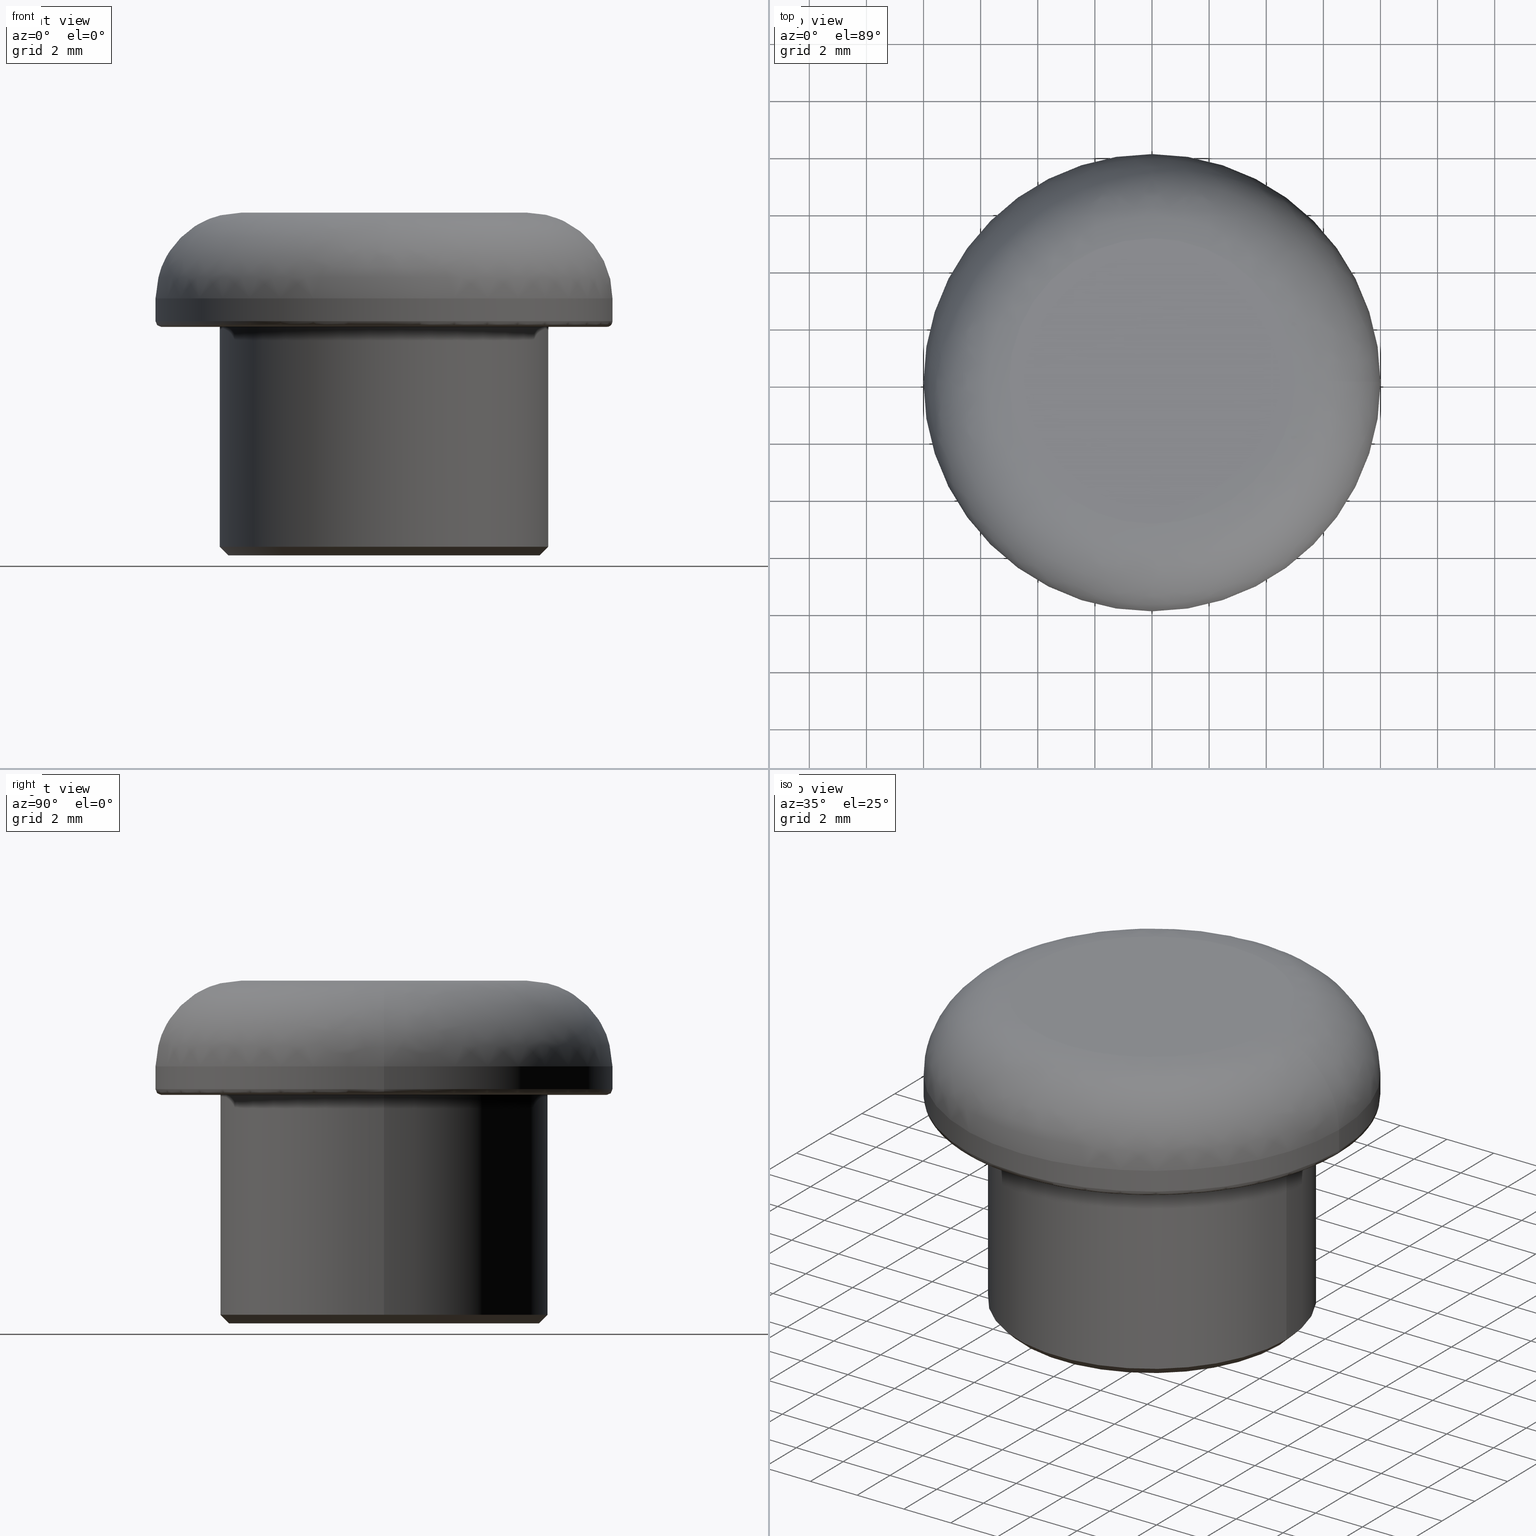
[diagram: canonical four-view strip — front | top / right | iso, engineering-drawing reading convention]
A machine part, canonical four-view strip (front | top / right | iso — engineering-drawing reading convention). The complete STEP part file that produces these views, byte-faithful:
ISO-10303-21;
HEADER;
/****************************************************************
 * Generated by software with PDE/Lib inside                    *
 * PDElib Version v4.4, created Mon 02/23/2004                  *
 * International Technegroup Inc. (www.iti-oh.com)              *
 ****************************************************************/
FILE_DESCRIPTION(('STEP AP203'),'2;1');
FILE_NAME('18.009.00.stp','2011-04-22T15:12:16',(''),(''),'2009.3.110','THINKDESIGN','');
FILE_SCHEMA(('CONFIG_CONTROL_DESIGN'));
ENDSEC;
DATA;
#2=CARTESIAN_POINT('',(-10.900000000003274,-2.900000000035107,-7.999999999968167));
#3=DIRECTION('',(0.0,0.0,-1.0));
#4=DIRECTION('',(0.0,1.0,0.0));
#5=AXIS2_PLACEMENT_3D('',#2,#3,#4);
#6=PLANE('',#5);
#7=CARTESIAN_POINT('',(-5.450000000001637,7.999999999968167,-7.999999999968168));
#8=VERTEX_POINT('',#7);
#9=CARTESIAN_POINT('',(5.450000000001637,7.999999999968167,-7.999999999968168));
#10=VERTEX_POINT('',#9);
#11=CARTESIAN_POINT('',(0.0,7.999999999968167,-7.999999999968168));
#12=DIRECTION('',(0.0,6.123234E-017,1.0));
#13=DIRECTION('',(1.0,0.0,0.0));
#14=AXIS2_PLACEMENT_3D('',#11,#12,#13);
#15=CIRCLE('',#14,5.450000000001637);
#16=EDGE_CURVE('',#8,#10,#15,.T.);
#17=ORIENTED_EDGE('',*,*,#16,.F.);
#18=CARTESIAN_POINT('',(0.0,7.999999999968167,-7.999999999968168));
#19=DIRECTION('',(0.0,6.123234E-017,1.0));
#20=DIRECTION('',(1.0,0.0,0.0));
#21=AXIS2_PLACEMENT_3D('',#18,#19,#20);
#22=CIRCLE('',#21,5.450000000001637);
#23=EDGE_CURVE('',#10,#8,#22,.T.);
#24=ORIENTED_EDGE('',*,*,#23,.F.);
#25=EDGE_LOOP('',(#17,#24));
#26=FACE_OUTER_BOUND('',#25,.T.);
#27=ADVANCED_FACE('',(#26),#6,.T.);
#28=CARTESIAN_POINT('',(5.450000000001637,7.999999999968167,-7.999999999968168));
#29=CARTESIAN_POINT('',(5.450000000001637,13.449999999969805,-7.999999999968168));
#30=CARTESIAN_POINT('',(0.0,13.449999999969805,-7.999999999968168));
#31=CARTESIAN_POINT('',(-5.450000000001637,13.449999999969805,-7.999999999968168));
#32=CARTESIAN_POINT('',(-5.450000000001637,7.999999999968167,-7.999999999968168));
#33=CARTESIAN_POINT('',(-5.450000000001637,2.549999999966530,-7.999999999968168));
#34=CARTESIAN_POINT('',(0.0,2.549999999966530,-7.999999999968168));
#35=CARTESIAN_POINT('',(5.450000000001637,2.549999999966530,-7.999999999968168));
#36=CARTESIAN_POINT('',(5.450000000001637,7.999999999968167,-7.999999999968168));
#37=CARTESIAN_POINT('',(5.750000000000000,7.999999999968167,-7.699999999969350));
#38=CARTESIAN_POINT('',(5.750000000000000,13.749999999968168,-7.699999999969350));
#39=CARTESIAN_POINT('',(1.836970E-017,13.749999999968168,-7.699999999969350));
#40=CARTESIAN_POINT('',(-5.750000000000000,13.749999999968168,-7.699999999969350));
#41=CARTESIAN_POINT('',(-5.750000000000000,7.999999999968167,-7.699999999969350));
#42=CARTESIAN_POINT('',(-5.750000000000000,2.249999999968167,-7.699999999969350));
#43=CARTESIAN_POINT('',(-1.836970E-017,2.249999999968167,-7.699999999969350));
#44=CARTESIAN_POINT('',(5.750000000000000,2.249999999968167,-7.699999999969350));
#45=CARTESIAN_POINT('',(5.750000000000000,7.999999999968167,-7.699999999969350));
#53=(BOUNDED_SURFACE()B_SPLINE_SURFACE(2,1,((#28,#37),(#29,#38),(#30,#39),(#31,#40),(#32,#41),(#33,#42),(#34,#43),(#35,#44),(#36,#45)),.UNSPECIFIED.,.T.,.F.,.U.)B_SPLINE_SURFACE_WITH_KNOTS((3,2,2,2,3),(2,2),(0.0,0.250000000000000,0.500000000000000,0.750000000000000,1.0),(-0.424264068709935,0.0),.UNSPECIFIED.)GEOMETRIC_REPRESENTATION_ITEM()RATIONAL_B_SPLINE_SURFACE(((1.0,1.0),(0.707106781186548,0.707106781186548),(1.0,1.0),(0.707106781186548,0.707106781186548),(1.0,1.0),(0.707106781186548,0.707106781186548),(1.0,1.0),(0.707106781186548,0.707106781186548),(1.0,1.0)))REPRESENTATION_ITEM('')SURFACE());
#54=ORIENTED_EDGE('',*,*,#23,.T.);
#55=ORIENTED_EDGE('',*,*,#16,.T.);
#56=CARTESIAN_POINT('',(5.750000000000000,7.999999999968167,-7.699999999969350));
#57=VERTEX_POINT('',#56);
#58=CARTESIAN_POINT('',(5.450000000001637,7.999999999968167,-7.999999999968168));
#59=DIRECTION('',(0.707106781186012,0.0,0.707106781187083));
#60=VECTOR('',#59,0.424264068709935);
#61=LINE('',#58,#60);
#62=EDGE_CURVE('',#10,#57,#61,.T.);
#63=ORIENTED_EDGE('',*,*,#62,.T.);
#64=CARTESIAN_POINT('',(-5.750000000000000,7.999999999968167,-7.699999999969350));
#65=VERTEX_POINT('',#64);
#66=CARTESIAN_POINT('',(0.0,7.999999999968167,-7.699999999969350));
#67=DIRECTION('',(0.0,6.123234E-017,1.0));
#68=DIRECTION('',(1.0,0.0,0.0));
#69=AXIS2_PLACEMENT_3D('',#66,#67,#68);
#70=CIRCLE('',#69,5.750000000000000);
#71=EDGE_CURVE('',#65,#57,#70,.T.);
#72=ORIENTED_EDGE('',*,*,#71,.F.);
#73=CARTESIAN_POINT('',(0.0,7.999999999968167,-7.699999999969350));
#74=DIRECTION('',(0.0,6.123234E-017,1.0));
#75=DIRECTION('',(1.0,0.0,0.0));
#76=AXIS2_PLACEMENT_3D('',#73,#74,#75);
#77=CIRCLE('',#76,5.750000000000000);
#78=EDGE_CURVE('',#57,#65,#77,.T.);
#79=ORIENTED_EDGE('',*,*,#78,.F.);
#80=ORIENTED_EDGE('',*,*,#62,.F.);
#81=EDGE_LOOP('',(#54,#55,#63,#72,#79,#80));
#82=FACE_OUTER_BOUND('',#81,.T.);
#83=ADVANCED_FACE('',(#82),#53,.T.);
#84=CARTESIAN_POINT('',(0.0,7.999999999968167,-7.699999999969350));
#85=DIRECTION('',(0.0,6.123234E-017,1.0));
#86=DIRECTION('',(1.0,0.0,0.0));
#87=AXIS2_PLACEMENT_3D('',#84,#85,#86);
#88=CYLINDRICAL_SURFACE('',#87,5.750000000000000);
#89=ORIENTED_EDGE('',*,*,#78,.T.);
#90=ORIENTED_EDGE('',*,*,#71,.T.);
#91=CARTESIAN_POINT('',(5.750000000000000,7.999999999968168,0.0));
#92=VERTEX_POINT('',#91);
#93=CARTESIAN_POINT('',(5.750000000000000,7.999999999968167,-7.699999999969350));
#94=DIRECTION('',(0.0,0.0,1.0));
#95=VECTOR('',#94,7.699999999969350);
#96=LINE('',#93,#95);
#97=EDGE_CURVE('',#57,#92,#96,.T.);
#98=ORIENTED_EDGE('',*,*,#97,.T.);
#99=CARTESIAN_POINT('',(-5.750000000000000,7.999999999968168,0.0));
#100=VERTEX_POINT('',#99);
#101=CARTESIAN_POINT('',(0.0,7.999999999968168,0.0));
#102=DIRECTION('',(0.0,6.123234E-017,1.0));
#103=DIRECTION('',(1.0,0.0,0.0));
#104=AXIS2_PLACEMENT_3D('',#101,#102,#103);
#105=CIRCLE('',#104,5.750000000000000);
#106=EDGE_CURVE('',#100,#92,#105,.T.);
#107=ORIENTED_EDGE('',*,*,#106,.F.);
#108=CARTESIAN_POINT('',(0.0,7.999999999968168,0.0));
#109=DIRECTION('',(0.0,6.123234E-017,1.0));
#110=DIRECTION('',(1.0,0.0,0.0));
#111=AXIS2_PLACEMENT_3D('',#108,#109,#110);
#112=CIRCLE('',#111,5.750000000000000);
#113=EDGE_CURVE('',#92,#100,#112,.T.);
#114=ORIENTED_EDGE('',*,*,#113,.F.);
#115=ORIENTED_EDGE('',*,*,#97,.F.);
#116=EDGE_LOOP('',(#89,#90,#98,#107,#114,#115));
#117=FACE_OUTER_BOUND('',#116,.T.);
#118=ADVANCED_FACE('',(#117),#88,.T.);
#119=CARTESIAN_POINT('',(-15.599999999938518,-7.599999999970351,8.881784E-016));
#120=DIRECTION('',(0.0,0.0,-1.0));
#121=DIRECTION('',(0.0,1.0,0.0));
#122=AXIS2_PLACEMENT_3D('',#119,#120,#121);
#123=PLANE('',#122);
#124=CARTESIAN_POINT('',(-7.799999999969259,7.999999999968168,0.0));
#125=VERTEX_POINT('',#124);
#126=CARTESIAN_POINT('',(7.799999999969259,7.999999999968168,0.0));
#127=VERTEX_POINT('',#126);
#128=CARTESIAN_POINT('',(0.0,7.999999999968168,0.0));
#129=DIRECTION('',(0.0,6.123234E-017,1.0));
#130=DIRECTION('',(1.0,0.0,0.0));
#131=AXIS2_PLACEMENT_3D('',#128,#129,#130);
#132=CIRCLE('',#131,7.799999999969259);
#133=EDGE_CURVE('',#125,#127,#132,.T.);
#134=ORIENTED_EDGE('',*,*,#133,.F.);
#135=CARTESIAN_POINT('',(0.0,7.999999999968168,0.0));
#136=DIRECTION('',(0.0,6.123234E-017,1.0));
#137=DIRECTION('',(1.0,0.0,0.0));
#138=AXIS2_PLACEMENT_3D('',#135,#136,#137);
#139=CIRCLE('',#138,7.799999999969259);
#140=EDGE_CURVE('',#127,#125,#139,.T.);
#141=ORIENTED_EDGE('',*,*,#140,.F.);
#142=EDGE_LOOP('',(#134,#141));
#143=FACE_OUTER_BOUND('',#142,.T.);
#144=ORIENTED_EDGE('',*,*,#113,.T.);
#145=ORIENTED_EDGE('',*,*,#106,.T.);
#146=EDGE_LOOP('',(#144,#145));
#147=FACE_BOUND('',#146,.T.);
#148=ADVANCED_FACE('',(#143,#147),#123,.T.);
#149=CARTESIAN_POINT('',(7.799999999969259,7.999999999968168,0.0));
#150=CARTESIAN_POINT('',(7.799999999969259,15.799999999937429,-4.776123E-016));
#151=CARTESIAN_POINT('',(-3.983197E-016,15.799999999937427,-4.776123E-016));
#152=CARTESIAN_POINT('',(-7.799999999969259,15.799999999937429,-4.776123E-016));
#153=CARTESIAN_POINT('',(-7.799999999969259,7.999999999968168,0.0));
#154=CARTESIAN_POINT('',(-7.799999999969259,0.199999999998909,4.776123E-016));
#155=CARTESIAN_POINT('',(3.983197E-016,0.199999999998909,4.776123E-016));
#156=CARTESIAN_POINT('',(7.799999999969259,0.199999999998909,4.776123E-016));
#157=CARTESIAN_POINT('',(7.799999999969259,7.999999999968168,0.0));
#158=CARTESIAN_POINT('',(7.999999999968168,7.999999999968168,0.0));
#159=CARTESIAN_POINT('',(7.999999999968168,15.999999999936335,-4.898587E-016));
#160=CARTESIAN_POINT('',(-3.983197E-016,15.999999999936335,-4.898587E-016));
#161=CARTESIAN_POINT('',(-7.999999999968168,15.999999999936335,-4.898587E-016));
#162=CARTESIAN_POINT('',(-7.999999999968168,7.999999999968168,0.0));
#163=CARTESIAN_POINT('',(-7.999999999968168,0.0,4.898587E-016));
#164=CARTESIAN_POINT('',(3.983197E-016,0.0,4.898587E-016));
#165=CARTESIAN_POINT('',(7.999999999968168,0.0,4.898587E-016));
#166=CARTESIAN_POINT('',(7.999999999968168,7.999999999968168,0.0));
#167=CARTESIAN_POINT('',(7.999999999968168,7.999999999968168,0.199999999998909));
#168=CARTESIAN_POINT('',(7.999999999968168,15.999999999936335,0.199999999998908));
#169=CARTESIAN_POINT('',(-3.860732E-016,15.999999999936335,0.199999999998908));
#170=CARTESIAN_POINT('',(-7.999999999968168,15.999999999936335,0.199999999998908));
#171=CARTESIAN_POINT('',(-7.999999999968168,7.999999999968168,0.199999999998909));
#172=CARTESIAN_POINT('',(-7.999999999968168,0.0,0.199999999998909));
#173=CARTESIAN_POINT('',(3.860732E-016,0.0,0.199999999998909));
#174=CARTESIAN_POINT('',(7.999999999968168,0.0,0.199999999998909));
#175=CARTESIAN_POINT('',(7.999999999968168,7.999999999968168,0.199999999998909));
#183=(BOUNDED_SURFACE()B_SPLINE_SURFACE(2,2,((#149,#158,#167),(#150,#159,#168),(#151,#160,#169),(#152,#161,#170),(#153,#162,#171),(#154,#163,#172),(#155,#164,#173),(#156,#165,#174),(#157,#166,#175)),.UNSPECIFIED.,.T.,.F.,.U.)B_SPLINE_SURFACE_WITH_KNOTS((3,2,2,2,3),(3,3),(0.0,0.250000000000000,0.500000000000000,0.750000000000000,1.0),(0.0,1.0),.UNSPECIFIED.)GEOMETRIC_REPRESENTATION_ITEM()RATIONAL_B_SPLINE_SURFACE(((1.0,0.707106781186548,1.0),(0.707106781186548,0.500000000000000,0.707106781186548),(1.0,0.707106781186548,1.0),(0.707106781186548,0.500000000000000,0.707106781186548),(1.0,0.707106781186548,1.0),(0.707106781186548,0.500000000000000,0.707106781186548),(1.0,0.707106781186548,1.0),(0.707106781186548,0.500000000000000,0.707106781186548),(1.0,0.707106781186548,1.0)))REPRESENTATION_ITEM('')SURFACE());
#184=ORIENTED_EDGE('',*,*,#140,.T.);
#185=ORIENTED_EDGE('',*,*,#133,.T.);
#186=CARTESIAN_POINT('',(7.999999999968168,7.999999999968168,0.199999999998909));
#187=VERTEX_POINT('',#186);
#188=CARTESIAN_POINT('',(7.799999999969259,7.999999999968168,0.199999999998909));
#189=DIRECTION('',(0.0,-1.0,6.123234E-017));
#190=DIRECTION('',(1.0,0.0,0.0));
#191=AXIS2_PLACEMENT_3D('',#188,#189,#190);
#192=CIRCLE('',#191,0.199999999998909);
#193=EDGE_CURVE('',#127,#187,#192,.T.);
#194=ORIENTED_EDGE('',*,*,#193,.T.);
#195=CARTESIAN_POINT('',(-7.999999999968168,7.999999999968168,0.199999999998909));
#196=VERTEX_POINT('',#195);
#197=CARTESIAN_POINT('',(0.0,7.999999999968168,0.199999999998909));
#198=DIRECTION('',(0.0,6.123234E-017,1.0));
#199=DIRECTION('',(1.0,0.0,0.0));
#200=AXIS2_PLACEMENT_3D('',#197,#198,#199);
#201=CIRCLE('',#200,7.999999999968168);
#202=EDGE_CURVE('',#196,#187,#201,.T.);
#203=ORIENTED_EDGE('',*,*,#202,.F.);
#204=CARTESIAN_POINT('',(0.0,7.999999999968168,0.199999999998909));
#205=DIRECTION('',(0.0,6.123234E-017,1.0));
#206=DIRECTION('',(1.0,0.0,0.0));
#207=AXIS2_PLACEMENT_3D('',#204,#205,#206);
#208=CIRCLE('',#207,7.999999999968168);
#209=EDGE_CURVE('',#187,#196,#208,.T.);
#210=ORIENTED_EDGE('',*,*,#209,.F.);
#211=ORIENTED_EDGE('',*,*,#193,.F.);
#212=EDGE_LOOP('',(#184,#185,#194,#203,#210,#211));
#213=FACE_OUTER_BOUND('',#212,.T.);
#214=ADVANCED_FACE('',(#213),#183,.T.);
#215=CARTESIAN_POINT('',(0.0,7.999999999968168,0.199999999998909));
#216=DIRECTION('',(0.0,6.123234E-017,1.0));
#217=DIRECTION('',(1.0,0.0,0.0));
#218=AXIS2_PLACEMENT_3D('',#215,#216,#217);
#219=CYLINDRICAL_SURFACE('',#218,7.999999999968168);
#220=ORIENTED_EDGE('',*,*,#209,.T.);
#221=ORIENTED_EDGE('',*,*,#202,.T.);
#222=CARTESIAN_POINT('',(7.999999999968168,7.999999999968168,0.999999999995907));
#223=VERTEX_POINT('',#222);
#224=CARTESIAN_POINT('',(7.999999999968168,7.999999999968168,0.199999999998909));
#225=DIRECTION('',(0.0,0.0,1.0));
#226=VECTOR('',#225,0.799999999996999);
#227=LINE('',#224,#226);
#228=EDGE_CURVE('',#187,#223,#227,.T.);
#229=ORIENTED_EDGE('',*,*,#228,.T.);
#230=CARTESIAN_POINT('',(-7.999999999968168,7.999999999968168,0.999999999995907));
#231=VERTEX_POINT('',#230);
#232=CARTESIAN_POINT('',(0.0,7.999999999968168,0.999999999995907));
#233=DIRECTION('',(0.0,6.123234E-017,1.0));
#234=DIRECTION('',(1.0,0.0,0.0));
#235=AXIS2_PLACEMENT_3D('',#232,#233,#234);
#236=CIRCLE('',#235,7.999999999968168);
#237=EDGE_CURVE('',#231,#223,#236,.T.);
#238=ORIENTED_EDGE('',*,*,#237,.F.);
#239=CARTESIAN_POINT('',(0.0,7.999999999968168,0.999999999995907));
#240=DIRECTION('',(0.0,6.123234E-017,1.0));
#241=DIRECTION('',(1.0,0.0,0.0));
#242=AXIS2_PLACEMENT_3D('',#239,#240,#241);
#243=CIRCLE('',#242,7.999999999968168);
#244=EDGE_CURVE('',#223,#231,#243,.T.);
#245=ORIENTED_EDGE('',*,*,#244,.F.);
#246=ORIENTED_EDGE('',*,*,#228,.F.);
#247=EDGE_LOOP('',(#220,#221,#229,#238,#245,#246));
#248=FACE_OUTER_BOUND('',#247,.T.);
#249=ADVANCED_FACE('',(#248),#219,.T.);
#250=CARTESIAN_POINT('',(7.999999999968168,7.999999999968168,0.999999999995907));
#251=CARTESIAN_POINT('',(7.999999999968168,15.999999999936335,0.999999999995907));
#252=CARTESIAN_POINT('',(-3.370874E-016,15.999999999936335,0.999999999995907));
#253=CARTESIAN_POINT('',(-7.999999999968168,15.999999999936335,0.999999999995907));
#254=CARTESIAN_POINT('',(-7.999999999968168,7.999999999968168,0.999999999995907));
#255=CARTESIAN_POINT('',(-7.999999999968168,0.0,0.999999999995908));
#256=CARTESIAN_POINT('',(3.370874E-016,0.0,0.999999999995908));
#257=CARTESIAN_POINT('',(7.999999999968168,0.0,0.999999999995908));
#258=CARTESIAN_POINT('',(7.999999999968168,7.999999999968168,0.999999999995907));
#259=CARTESIAN_POINT('',(7.999999999968168,7.999999999968168,3.999999999984084));
#260=CARTESIAN_POINT('',(7.999999999968168,15.999999999936335,3.999999999984083));
#261=CARTESIAN_POINT('',(-1.533903E-016,15.999999999936335,3.999999999984084));
#262=CARTESIAN_POINT('',(-7.999999999968168,15.999999999936335,3.999999999984083));
#263=CARTESIAN_POINT('',(-7.999999999968168,7.999999999968168,3.999999999984084));
#264=CARTESIAN_POINT('',(-7.999999999968168,0.0,3.999999999984084));
#265=CARTESIAN_POINT('',(1.533903E-016,0.0,3.999999999984084));
#266=CARTESIAN_POINT('',(7.999999999968168,0.0,3.999999999984084));
#267=CARTESIAN_POINT('',(7.999999999968168,7.999999999968168,3.999999999984084));
#268=CARTESIAN_POINT('',(4.999999999979992,7.999999999968168,3.999999999984084));
#269=CARTESIAN_POINT('',(4.999999999979992,12.999999999948157,3.999999999984084));
#270=CARTESIAN_POINT('',(-1.533903E-016,12.999999999948159,3.999999999984083));
#271=CARTESIAN_POINT('',(-4.999999999979992,12.999999999948157,3.999999999984084));
#272=CARTESIAN_POINT('',(-4.999999999979992,7.999999999968168,3.999999999984084));
#273=CARTESIAN_POINT('',(-4.999999999979992,2.999999999988176,3.999999999984084));
#274=CARTESIAN_POINT('',(1.533903E-016,2.999999999988176,3.999999999984084));
#275=CARTESIAN_POINT('',(4.999999999979992,2.999999999988176,3.999999999984084));
#276=CARTESIAN_POINT('',(4.999999999979992,7.999999999968168,3.999999999984084));
#284=(BOUNDED_SURFACE()B_SPLINE_SURFACE(2,2,((#250,#259,#268),(#251,#260,#269),(#252,#261,#270),(#253,#262,#271),(#254,#263,#272),(#255,#264,#273),(#256,#265,#274),(#257,#266,#275),(#258,#267,#276)),.UNSPECIFIED.,.T.,.F.,.U.)B_SPLINE_SURFACE_WITH_KNOTS((3,2,2,2,3),(3,3),(0.0,0.250000000000000,0.500000000000000,0.750000000000000,1.0),(0.0,1.0),.UNSPECIFIED.)GEOMETRIC_REPRESENTATION_ITEM()RATIONAL_B_SPLINE_SURFACE(((1.0,0.707106781186548,1.0),(0.707106781186548,0.500000000000000,0.707106781186548),(1.0,0.707106781186548,1.0),(0.707106781186548,0.500000000000000,0.707106781186548),(1.0,0.707106781186548,1.0),(0.707106781186548,0.500000000000000,0.707106781186548),(1.0,0.707106781186548,1.0),(0.707106781186548,0.500000000000000,0.707106781186548),(1.0,0.707106781186548,1.0)))REPRESENTATION_ITEM('')SURFACE());
#285=ORIENTED_EDGE('',*,*,#244,.T.);
#286=ORIENTED_EDGE('',*,*,#237,.T.);
#287=CARTESIAN_POINT('',(4.999999999979991,7.999999999968168,3.999999999984084));
#288=VERTEX_POINT('',#287);
#289=CARTESIAN_POINT('',(4.999999999979991,7.999999999968168,0.999999999995907));
#290=DIRECTION('',(0.0,-1.0,6.123234E-017));
#291=DIRECTION('',(1.0,0.0,0.0));
#292=AXIS2_PLACEMENT_3D('',#289,#290,#291);
#293=CIRCLE('',#292,2.999999999988177);
#294=EDGE_CURVE('',#223,#288,#293,.T.);
#295=ORIENTED_EDGE('',*,*,#294,.T.);
#296=CARTESIAN_POINT('',(-4.999999999979991,7.999999999968168,3.999999999984084));
#297=VERTEX_POINT('',#296);
#298=CARTESIAN_POINT('',(0.0,7.999999999968168,3.999999999984084));
#299=DIRECTION('',(0.0,6.123234E-017,1.0));
#300=DIRECTION('',(1.0,0.0,0.0));
#301=AXIS2_PLACEMENT_3D('',#298,#299,#300);
#302=CIRCLE('',#301,4.999999999979991);
#303=EDGE_CURVE('',#297,#288,#302,.T.);
#304=ORIENTED_EDGE('',*,*,#303,.F.);
#305=CARTESIAN_POINT('',(0.0,7.999999999968168,3.999999999984084));
#306=DIRECTION('',(0.0,6.123234E-017,1.0));
#307=DIRECTION('',(1.0,0.0,0.0));
#308=AXIS2_PLACEMENT_3D('',#305,#306,#307);
#309=CIRCLE('',#308,4.999999999979991);
#310=EDGE_CURVE('',#288,#297,#309,.T.);
#311=ORIENTED_EDGE('',*,*,#310,.F.);
#312=ORIENTED_EDGE('',*,*,#294,.F.);
#313=EDGE_LOOP('',(#285,#286,#295,#304,#311,#312));
#314=FACE_OUTER_BOUND('',#313,.T.);
#315=ADVANCED_FACE('',(#314),#284,.T.);
#316=CARTESIAN_POINT('',(9.999999999959982,-1.999999999991815,3.999999999984084));
#317=DIRECTION('',(0.0,0.0,1.0));
#318=DIRECTION('',(0.0,1.0,0.0));
#319=AXIS2_PLACEMENT_3D('',#316,#317,#318);
#320=PLANE('',#319);
#321=ORIENTED_EDGE('',*,*,#310,.T.);
#322=ORIENTED_EDGE('',*,*,#303,.T.);
#323=EDGE_LOOP('',(#321,#322));
#324=FACE_OUTER_BOUND('',#323,.T.);
#325=ADVANCED_FACE('',(#324),#320,.T.);
#326=CLOSED_SHELL('',(#27,#83,#118,#148,#214,#249,#315,#325));
#327=MANIFOLD_SOLID_BREP('',#326);
#333=(NAMED_UNIT(*)PLANE_ANGLE_UNIT()SI_UNIT($,.RADIAN.));
#334=DIMENSIONAL_EXPONENTS(0.0,0.0,0.0,0.0,0.0,0.0,0.0);
#335=PLANE_ANGLE_MEASURE_WITH_UNIT(PLANE_ANGLE_MEASURE(0.017453292500000),#333);
#339=(CONVERSION_BASED_UNIT('DEGREE',#335)NAMED_UNIT(#334)PLANE_ANGLE_UNIT());
#343=(NAMED_UNIT(*)SI_UNIT($,.STERADIAN.)SOLID_ANGLE_UNIT());
#347=(LENGTH_UNIT()NAMED_UNIT(*)SI_UNIT(.MILLI.,.METRE.));
#349=UNCERTAINTY_MEASURE_WITH_UNIT(LENGTH_MEASURE(0.001000000000000),#347,'DISTANCE_ACCURACY_VALUE','');
#351=(GEOMETRIC_REPRESENTATION_CONTEXT(3)GLOBAL_UNCERTAINTY_ASSIGNED_CONTEXT((#349))GLOBAL_UNIT_ASSIGNED_CONTEXT((#339,#343,#347))REPRESENTATION_CONTEXT('thinkdesign','2009.3.110'));
#352=ADVANCED_BREP_SHAPE_REPRESENTATION('',(#327),#351);
#353=APPLICATION_CONTEXT('configuration controlled 3D designs of mechanical parts and assemblies');
#354=APPLICATION_PROTOCOL_DEFINITION('International Standard','config_control_design',1995,#353);
#355=MECHANICAL_CONTEXT('None',#353,'mechanical');
#356=PRODUCT('None','None','None',(#355));
#357=PRODUCT_RELATED_PRODUCT_CATEGORY('detail',$,(#356));
#358=PRODUCT_CATEGORY('part',$);
#359=PRODUCT_CATEGORY_RELATIONSHIP('None','None',#358,#357);
#360=PERSON('PERSON1','None','None',$,$,$);
#361=ORGANIZATION('','None','None');
#362=PERSON_AND_ORGANIZATION(#360,#361);
#363=PERSON_AND_ORGANIZATION_ROLE('design_owner');
#364=CC_DESIGN_PERSON_AND_ORGANIZATION_ASSIGNMENT(#362,#363,(#356));
#365=PRODUCT_DEFINITION_FORMATION_WITH_SPECIFIED_SOURCE('None','None',#356,.NOT_KNOWN.);
#366=PERSON('PERSON2','None','None',$,$,$);
#367=ORGANIZATION('','None','None');
#368=PERSON_AND_ORGANIZATION(#366,#367);
#369=PERSON_AND_ORGANIZATION_ROLE('creator');
#370=CC_DESIGN_PERSON_AND_ORGANIZATION_ASSIGNMENT(#368,#369,(#365));
#371=PERSON('PERSON3','None','None',$,$,$);
#372=ORGANIZATION('','None','None');
#373=PERSON_AND_ORGANIZATION(#371,#372);
#374=PERSON_AND_ORGANIZATION_ROLE('part_supplier');
#375=CC_DESIGN_PERSON_AND_ORGANIZATION_ASSIGNMENT(#373,#374,(#365));
#376=APPROVAL_STATUS('approved');
#377=APPROVAL(#376,'None');
#378=PERSON('PERSON4','None','None',$,$,$);
#379=ORGANIZATION('','None','None');
#380=PERSON_AND_ORGANIZATION(#378,#379);
#381=APPROVAL_ROLE('None');
#382=APPROVAL_PERSON_ORGANIZATION(#380,#377,#381);
#383=CALENDAR_DATE(2011,22,4);
#384=COORDINATED_UNIVERSAL_TIME_OFFSET(0,0,.AHEAD.);
#385=LOCAL_TIME(15,12,16.0,#384);
#386=DATE_AND_TIME(#383,#385);
#387=APPROVAL_DATE_TIME(#386,#377);
#388=CC_DESIGN_APPROVAL(#377,(#365));
#389=SECURITY_CLASSIFICATION_LEVEL('unclassified');
#390=SECURITY_CLASSIFICATION('None','None',#389);
#391=CC_DESIGN_SECURITY_CLASSIFICATION(#390,(#365));
#392=APPROVAL_STATUS('approved');
#393=APPROVAL(#392,'None');
#394=PERSON('PERSON5','None','None',$,$,$);
#395=ORGANIZATION('','None','None');
#396=PERSON_AND_ORGANIZATION(#394,#395);
#397=APPROVAL_ROLE('None');
#398=APPROVAL_PERSON_ORGANIZATION(#396,#393,#397);
#399=CALENDAR_DATE(2011,22,4);
#400=COORDINATED_UNIVERSAL_TIME_OFFSET(0,0,.AHEAD.);
#401=LOCAL_TIME(15,12,16.0,#400);
#402=DATE_AND_TIME(#399,#401);
#403=APPROVAL_DATE_TIME(#402,#393);
#404=CC_DESIGN_APPROVAL(#393,(#390));
#405=PERSON('PERSON6','None','None',$,$,$);
#406=ORGANIZATION('','None','None');
#407=PERSON_AND_ORGANIZATION(#405,#406);
#408=PERSON_AND_ORGANIZATION_ROLE('classification_officer');
#409=CC_DESIGN_PERSON_AND_ORGANIZATION_ASSIGNMENT(#407,#408,(#390));
#410=DATE_TIME_ROLE('classification_date');
#411=CALENDAR_DATE(2011,22,4);
#412=COORDINATED_UNIVERSAL_TIME_OFFSET(0,0,.AHEAD.);
#413=LOCAL_TIME(15,12,16.0,#412);
#414=DATE_AND_TIME(#411,#413);
#415=CC_DESIGN_DATE_AND_TIME_ASSIGNMENT(#414,#410,(#390));
#416=DESIGN_CONTEXT('part definition',#353,'design');
#417=DOCUMENT_TYPE('cad_filename');
#418=DOCUMENT('None','None','None',#417);
#419=PRODUCT_DEFINITION_WITH_ASSOCIATED_DOCUMENTS('None','None',#365,#416,(#418));
#420=PERSON('PERSON7','None','None',$,$,$);
#421=ORGANIZATION('','None','None');
#422=PERSON_AND_ORGANIZATION(#420,#421);
#423=PERSON_AND_ORGANIZATION_ROLE('creator');
#424=CC_DESIGN_PERSON_AND_ORGANIZATION_ASSIGNMENT(#422,#423,(#419));
#425=DATE_TIME_ROLE('creation_date');
#426=CALENDAR_DATE(2011,22,4);
#427=COORDINATED_UNIVERSAL_TIME_OFFSET(0,0,.AHEAD.);
#428=LOCAL_TIME(15,12,16.0,#427);
#429=DATE_AND_TIME(#426,#428);
#430=CC_DESIGN_DATE_AND_TIME_ASSIGNMENT(#429,#425,(#419));
#431=APPROVAL_STATUS('approved');
#432=APPROVAL(#431,'None');
#433=PERSON('PERSON8','None','None',$,$,$);
#434=ORGANIZATION('','None','None');
#435=PERSON_AND_ORGANIZATION(#433,#434);
#436=APPROVAL_ROLE('None');
#437=APPROVAL_PERSON_ORGANIZATION(#435,#432,#436);
#438=CALENDAR_DATE(2011,22,4);
#439=COORDINATED_UNIVERSAL_TIME_OFFSET(0,0,.AHEAD.);
#440=LOCAL_TIME(15,12,16.0,#439);
#441=DATE_AND_TIME(#438,#440);
#442=APPROVAL_DATE_TIME(#441,#432);
#443=CC_DESIGN_APPROVAL(#432,(#419));
#444=PRODUCT_DEFINITION_SHAPE('None','None',#419);
#445=SHAPE_DEFINITION_REPRESENTATION(#444,#352);
#446=DIMENSIONAL_EXPONENTS(0.0,0.0,0.0,0.0,0.0,0.0,0.0);
#447=DIMENSIONAL_EXPONENTS(1.0,0.0,0.0,0.0,0.0,0.0,0.0);
ENDSEC;
END-ISO-10303-21;
